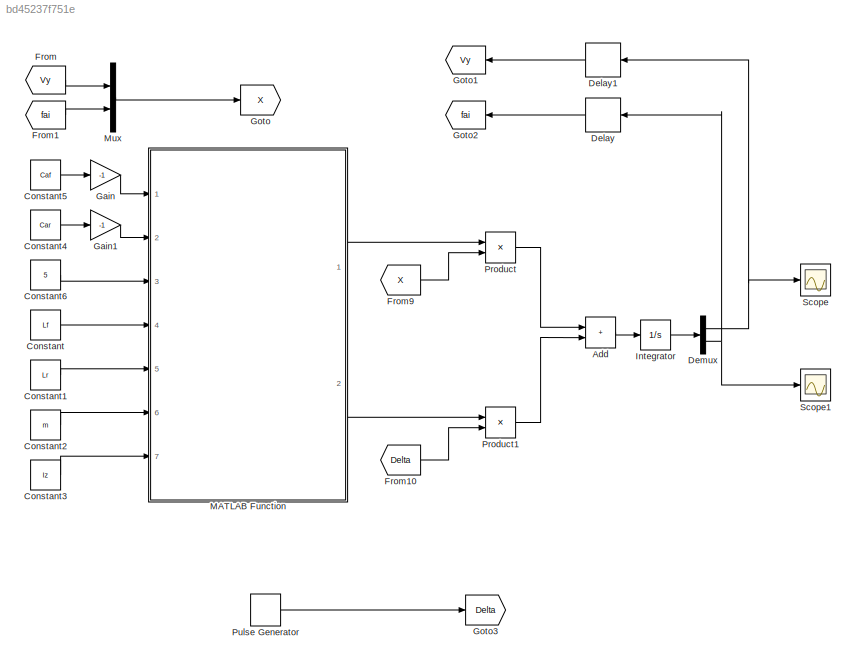
MODEL slx_bd45237f751e
KIND model
CONFIG AbsTol = auto
CONFIG EnableMultiTasking = off
CONFIG FixedStep = auto
CONFIG MaxStep = auto
CONFIG MinStep = auto
CONFIG RelTol = 1e-3
CONFIG SampleTimeConstraint = Unconstrained
CONFIG SolverName = VariableStepAuto
CONFIG StartTime = 0.0
CONFIG StopTime = 20
BLOCK [Sum] Add
  IconShape = rectangular
  Ports = [2, 1]
BLOCK [Constant] Constant
  Value = Lf
BLOCK [Constant] Constant1
  Value = Lr
BLOCK [Constant] Constant2
  Value = m
BLOCK [Constant] Constant3
  Value = Iz
BLOCK [Constant] Constant4
  Value = Car
BLOCK [Constant] Constant5
  Value = Caf
BLOCK [Constant] Constant6
  Value = 5
BLOCK [Delay] Delay
  DelayLength = 1
  InputPortMap = u0
  NameLocation = top
  Ports = [1, 1]
BLOCK [Delay] Delay1
  DelayLength = 1
  InputPortMap = u0
  NameLocation = top
  Ports = [1, 1]
BLOCK [Demux] Demux
  Outputs = 2
  Ports = [1, 2]
BLOCK [From] From
  GotoTag = Vy
BLOCK [From] From1
  GotoTag = fai
BLOCK [From] From10
  GotoTag = Delta
BLOCK [From] From9
  GotoTag = X
BLOCK [Gain] Gain
  Gain = -1
BLOCK [Gain] Gain1
  Gain = -1
BLOCK [Goto] Goto
  GotoTag = X
BLOCK [Goto] Goto1
  GotoTag = Vy
  NameLocation = top
BLOCK [Goto] Goto2
  GotoTag = fai
  NameLocation = top
BLOCK [Goto] Goto3
  GotoTag = Delta
BLOCK [Integrator] Integrator
  Ports = [1, 1]
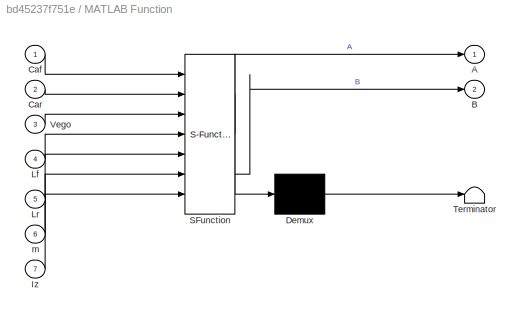
BLOCK [SubSystem] MATLAB Function
  ErrorFcn = Stateflow.Translate.translate
  PermitHierarchicalResolution = ExplicitOnly
  Ports = [7, 2]
  RequestExecContextInheritance = off
  SFBlockType = MATLAB Function
  TreatAsAtomicUnit = on
BLOCK [Demux] MATLAB Function/ Demux 
  Outputs = 1
  Ports = [1, 1]
BLOCK [S-Function] MATLAB Function/ SFunction 
  EnableBusSupport = on
  FunctionName = sf_sfun
  PortCounts = [7 3]
  Ports = [7, 3]
  SFcnIsStateOwnerBlock = off
  SFunctionDeploymentMode = off
  Tag = Stateflow S-Function 2
BLOCK [Terminator] MATLAB Function/ Terminator 
BLOCK [Outport] MATLAB Function/A
BLOCK [Outport] MATLAB Function/B
  Port = 2
BLOCK [Inport] MATLAB Function/Caf
BLOCK [Inport] MATLAB Function/Car
  Port = 2
BLOCK [Inport] MATLAB Function/Iz
  Port = 7
BLOCK [Inport] MATLAB Function/Lf
  Port = 4
BLOCK [Inport] MATLAB Function/Lr
  Port = 5
BLOCK [Inport] MATLAB Function/Vego
  Port = 3
BLOCK [Inport] MATLAB Function/m
  Port = 6
BLOCK [Mux] Mux
  DisplayOption = bar
  Inputs = 2
  Ports = [2, 1]
BLOCK [Product] Product
  Multiplication = Matrix(*)
  Ports = [2, 1]
BLOCK [Product] Product1
  Multiplication = Matrix(*)
  Ports = [2, 1]
BLOCK [DiscretePulseGenerator] Pulse Generator
  Amplitude = 0.1
  Period = 1
  Ports = [0, 1]
  PulseType = Time based
  PulseWidth = 0.1
BLOCK [Scope] Scope
  Floating = off
  NumInputPorts = 1
  Ports = [1]
  ScopeSpecificationString = Simulink.scopes.TimeScopeBlockCfg('CurrentConfiguration', extmgr.ConfigurationSet(extmgr.Configuration('Core','General UI',true),extmgr.Configuration('Core','Source UI',true),extmgr.Configuration('Sources','WiredSimulink',true),extmgr.Configuration('Visuals','Time Domain',true,'SerializedDisplays',{struct('MinYLimReal','-11770297514531890149360092053504.00000','MaxYLimReal','1757069361577830011415...<+1643ch>
BLOCK [Scope] Scope1
  Floating = off
  NumInputPorts = 1
  Ports = [1]
  ScopeSpecificationString = Simulink.scopes.TimeScopeBlockCfg('CurrentConfiguration', extmgr.ConfigurationSet(extmgr.Configuration('Core','General UI',true),extmgr.Configuration('Core','Source UI',true),extmgr.Configuration('Sources','WiredSimulink',true,'DataLoggingVariableName','ScopeData1'),extmgr.Configuration('Visuals','Time Domain',true,'SerializedDisplays',{struct('MinYLimReal','-53803540868354.4375','MaxYLimReal','22...<+1489ch>
LINE Add:1 -> Integrator:1
LINE Constant1:1 -> MATLAB Function:5
LINE Constant2:1 -> MATLAB Function:6
LINE Constant3:1 -> MATLAB Function:7
LINE Constant4:1 -> Gain1:1
LINE Constant5:1 -> Gain:1
LINE Constant6:1 -> MATLAB Function:3
LINE Constant:1 -> MATLAB Function:4
LINE Delay1:1 -> Goto1:1
LINE Delay:1 -> Goto2:1
NET Demux:1 -> Delay1:1, Scope:1
NET Demux:2 -> Delay:1, Scope1:1
LINE From10:1 -> Product1:2
LINE From1:1 -> Mux:2
LINE From9:1 -> Product:2
LINE From:1 -> Mux:1
LINE Gain1:1 -> MATLAB Function:2
LINE Gain:1 -> MATLAB Function:1
LINE Integrator:1 -> Demux:1
LINE MATLAB Function:1 -> Product:1
LINE MATLAB Function:2 -> Product1:1
LINE Mux:1 -> Goto:1
LINE Product1:1 -> Add:2
LINE Product:1 -> Add:1
LINE Pulse Generator:1 -> Goto3:1
note: NET lines group one-source signal fan-out (src -> all destinations, sorted); 1:1 wires keep LINE
CHART MATLAB Function states=1 transitions=1
  STATE_LABEL 'eML_blk_kernel()'
  STATE_LABEL 'SCRIPT:\nfunction [A,B] = fun_2DoF(Caf,Car,Vego,Lf,Lr,m,Iz)\n\nA = [-(2*Caf+2*Car)/(m*Vego) -Vego-(2*Caf*Lf-2*Car*Lr)/(m*Vego);\n     -(2*Caf*Lf-2*Car*Lr)/(Iz*Vego) -(2*Caf*Lf*Lf+2*Car*Lr*Lr)/(Iz*Vego)];\n\nB = [2*Caf/m;2*Caf*Lf/Iz];\n'
CHART  states=0 transitions=0
